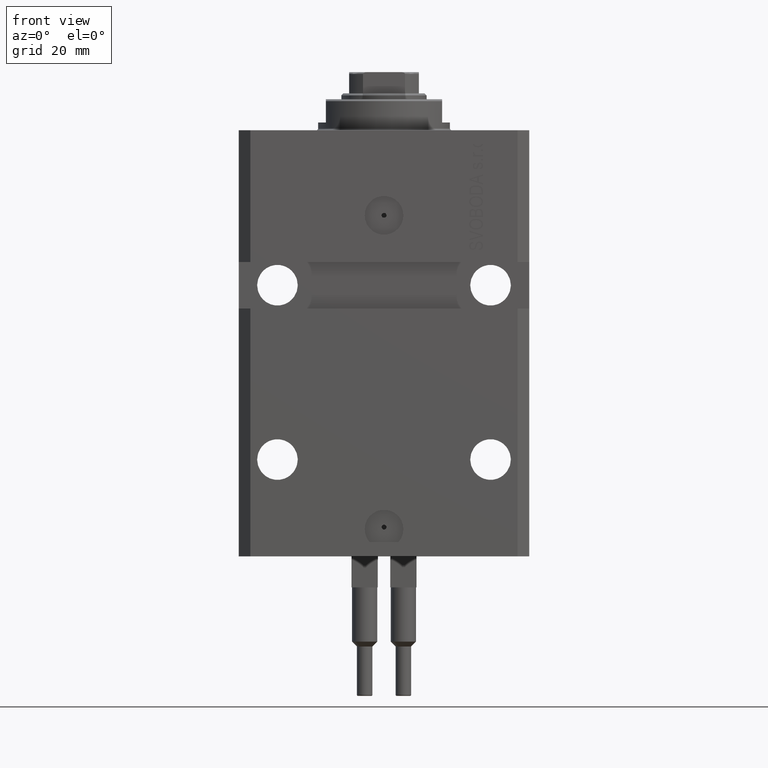
[diagram: clean part render]
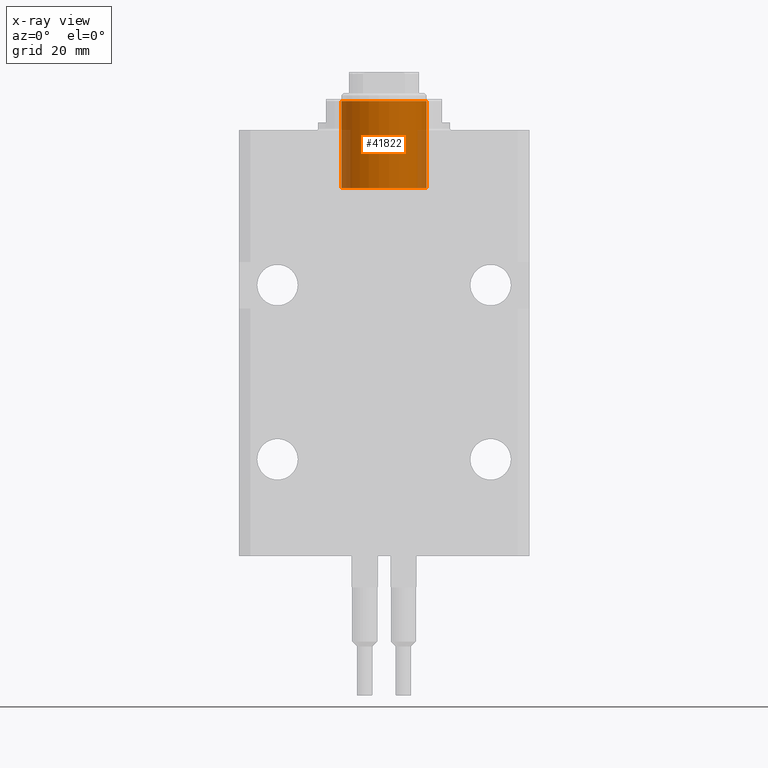
[diagram: x-ray — body ghosted, one internal face saturated and labeled with its STEP entity id]
A machine part, front view, then the same camera in x-ray: the body is ghosted and one INTERNAL B-rep face — a face not visible from any outside direction — is saturated and labeled: STEP entity #41822.
In plain terms, the highlighted cylindrical surface (partial cylindrical patch) has radius 11 mm, axis along (0, -0, 1).
Its self-contained STEP definition (entity closure, byte-faithful):
#438 = CARTESIAN_POINT ( 'NONE',  ( -11.00000000000000000, 0.000000000000000000, 15.00000000000000000 ) ) ;
#2757 = CARTESIAN_POINT ( 'NONE',  ( 0.000000000000000000, 0.000000000000000000, -7.500000000000000000 ) ) ;
#6120 = FACE_OUTER_BOUND ( 'NONE', #26234, .T. ) ;
#8316 = LINE ( 'NONE', #438, #33137 ) ;
#8370 = VECTOR ( 'NONE', #35576, 1000.000000000000000 ) ;
#9596 = DIRECTION ( 'NONE',  ( -1.000000000000000000, 0.000000000000000000, 0.000000000000000000 ) ) ;
#10136 = ORIENTED_EDGE ( 'NONE', *, *, #28997, .F. ) ;
#10312 = CARTESIAN_POINT ( 'NONE',  ( 0.000000000000000000, 0.000000000000000000, 15.00000000000000000 ) ) ;
#10414 = AXIS2_PLACEMENT_3D ( 'NONE', #2757, #35764, #43655 ) ;
#12452 = CARTESIAN_POINT ( 'NONE',  ( -11.00000000000000000, 0.000000000000000000, -7.500000000000000000 ) ) ;
#13081 = DIRECTION ( 'NONE',  ( -1.000000000000000000, 0.000000000000000000, 0.000000000000000000 ) ) ;
#17375 = CIRCLE ( 'NONE', #18951, 11.00000000000000000 ) ;
#18931 = VERTEX_POINT ( 'NONE', #34533 ) ;
#18951 = AXIS2_PLACEMENT_3D ( 'NONE', #45870, #31545, #13081 ) ;
#19399 = DIRECTION ( 'NONE',  ( -0.000000000000000000, -0.000000000000000000, -1.000000000000000000 ) ) ;
#21030 = LINE ( 'NONE', #39754, #8370 ) ;
#21148 = CYLINDRICAL_SURFACE ( 'NONE', #43854, 11.00000000000000000 ) ;
#23372 = ORIENTED_EDGE ( 'NONE', *, *, #29876, .T. ) ;
#23441 = EDGE_CURVE ( 'NONE', #44644, #30870, #17375, .T. ) ;
#24539 = CIRCLE ( 'NONE', #10414, 11.00000000000000000 ) ;
#26234 = EDGE_LOOP ( 'NONE', ( #36869, #48491, #23372, #10136 ) ) ;
#28997 = EDGE_CURVE ( 'NONE', #30870, #34569, #8316, .T. ) ;
#29876 = EDGE_CURVE ( 'NONE', #18931, #34569, #24539, .T. ) ;
#30027 = CARTESIAN_POINT ( 'NONE',  ( -11.00000000000000000, 0.000000000000000000, 15.00000000000000000 ) ) ;
#30549 = CARTESIAN_POINT ( 'NONE',  ( 11.00000000000000000, 1.347111479062088405E-15, 15.00000000000000000 ) ) ;
#30870 = VERTEX_POINT ( 'NONE', #30027 ) ;
#31545 = DIRECTION ( 'NONE',  ( 0.000000000000000000, 0.000000000000000000, -1.000000000000000000 ) ) ;
#33137 = VECTOR ( 'NONE', #19399, 1000.000000000000000 ) ;
#34533 = CARTESIAN_POINT ( 'NONE',  ( 11.00000000000000000, 1.347111479062088405E-15, -7.500000000000000000 ) ) ;
#34569 = VERTEX_POINT ( 'NONE', #12452 ) ;
#35576 = DIRECTION ( 'NONE',  ( -0.000000000000000000, -0.000000000000000000, -1.000000000000000000 ) ) ;
#35764 = DIRECTION ( 'NONE',  ( 0.000000000000000000, 0.000000000000000000, -1.000000000000000000 ) ) ;
#36869 = ORIENTED_EDGE ( 'NONE', *, *, #23441, .F. ) ;
#38687 = EDGE_CURVE ( 'NONE', #44644, #18931, #21030, .T. ) ;
#39754 = CARTESIAN_POINT ( 'NONE',  ( 11.00000000000000000, 1.347111479062088405E-15, 15.00000000000000000 ) ) ;
#41822 = ADVANCED_FACE ( 'NONE', ( #6120 ), #21148, .F. ) ;
#43333 = DIRECTION ( 'NONE',  ( -0.000000000000000000, -0.000000000000000000, -1.000000000000000000 ) ) ;
#43655 = DIRECTION ( 'NONE',  ( -1.000000000000000000, 0.000000000000000000, 0.000000000000000000 ) ) ;
#43854 = AXIS2_PLACEMENT_3D ( 'NONE', #10312, #43333, #9596 ) ;
#44644 = VERTEX_POINT ( 'NONE', #30549 ) ;
#45870 = CARTESIAN_POINT ( 'NONE',  ( 0.000000000000000000, 0.000000000000000000, 15.00000000000000000 ) ) ;
#48491 = ORIENTED_EDGE ( 'NONE', *, *, #38687, .T. ) ;